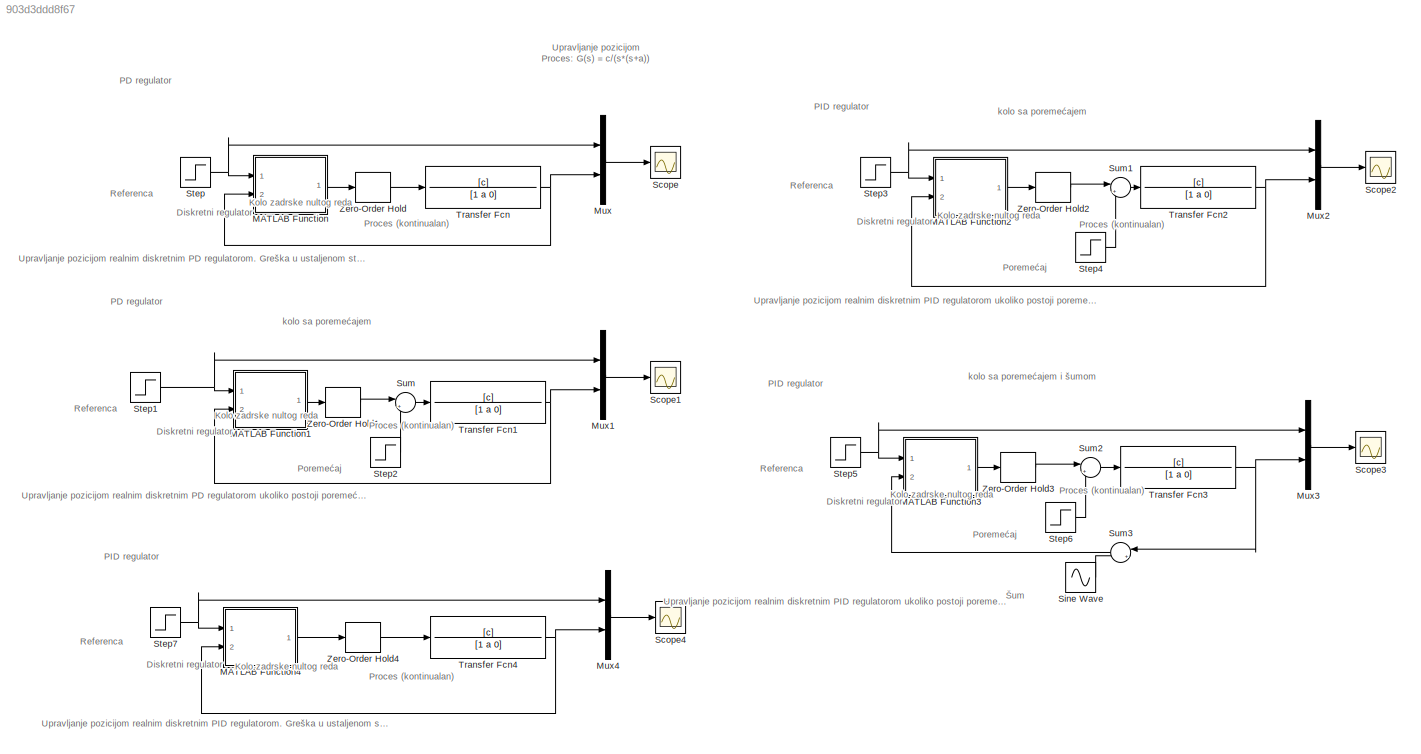
MODEL slx_903d3ddd8f67
KIND model
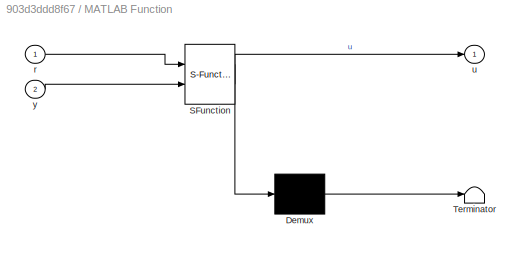
BLOCK [SubSystem] MATLAB Function
  ErrorFcn = Stateflow.Translate.translate
  FunctionWithSeparateData = off
  MaskDescription = Embedded MATLAB block
  MaskDisplay = bgColor = Simulink.Root.ColorString2Rgb(get_param(gcbh, 'BackgroundColor')); image(imread('private/eml_membrane_16.png','png','BackgroundColor',bgColor(1:3)),'center'); disp([10 10 'fcn']);  <repeated x5 — deduplicated; at blocks: MATLAB Function, MATLAB Function1, MATLAB Function2, MATLAB Function3, MATLAB Function4>
  MaskHideContents = off
  MaskIconFrame = on
  MaskIconOpaque = off
  MaskIconRotate = none
  MaskIconUnits = normalized
  MaskPortRotate = default
  MaskSelfModifiable = on
  MaskType = Stateflow
  MinAlgLoopOccurrences = off
  Opaque = off
  PermitHierarchicalResolution = ParametersOnly
  Ports = [2, 1]
  PropExecContextOutsideSubsystem = off
  RTWSystemCode = Auto
  RequestExecContextInheritance = off
  SFBlockType = MATLAB Function
  TreatAsAtomicUnit = on
  Variant = off
BLOCK [Demux] MATLAB Function/ Demux 
  Outputs = 1
  Ports = [1, 1]
BLOCK [S-Function] MATLAB Function/ SFunction 
  EnableBusSupport = on
  FunctionName = sf_sfun
  Parameters = K3,N,T,Td3
  PortCounts = [2 2]
  Ports = [2, 2]
  SFunctionDeploymentMode = off
  Tag = Stateflow S-Function upravljanjePozicijom2012a 2
BLOCK [Terminator] MATLAB Function/ Terminator 
BLOCK [Inport] MATLAB Function/r
  IconDisplay = Port number
BLOCK [Outport] MATLAB Function/u
  IconDisplay = Port number
BLOCK [Inport] MATLAB Function/y
  IconDisplay = Port number
  Port = 2
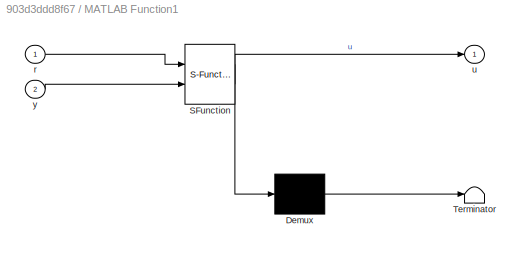
BLOCK [SubSystem] MATLAB Function1
  ErrorFcn = Stateflow.Translate.translate
  FunctionWithSeparateData = off
  MaskDescription = Embedded MATLAB block
  MaskHideContents = off
  MaskIconFrame = on
  MaskIconOpaque = off
  MaskIconRotate = none
  MaskIconUnits = normalized
  MaskPortRotate = default
  MaskSelfModifiable = on
  MaskType = Stateflow
  MinAlgLoopOccurrences = off
  Opaque = off
  PermitHierarchicalResolution = ParametersOnly
  Ports = [2, 1]
  PropExecContextOutsideSubsystem = off
  RTWSystemCode = Auto
  RequestExecContextInheritance = off
  SFBlockType = MATLAB Function
  TreatAsAtomicUnit = on
  Variant = off
BLOCK [Demux] MATLAB Function1/ Demux 
  Outputs = 1
  Ports = [1, 1]
BLOCK [S-Function] MATLAB Function1/ SFunction 
  EnableBusSupport = on
  FunctionName = sf_sfun
  Parameters = K3,N,T,Td3
  PortCounts = [2 2]
  Ports = [2, 2]
  SFunctionDeploymentMode = off
  Tag = Stateflow S-Function upravljanjePozicijom2012a 1
BLOCK [Terminator] MATLAB Function1/ Terminator 
BLOCK [Inport] MATLAB Function1/r
  IconDisplay = Port number
BLOCK [Outport] MATLAB Function1/u
  IconDisplay = Port number
BLOCK [Inport] MATLAB Function1/y
  IconDisplay = Port number
  Port = 2
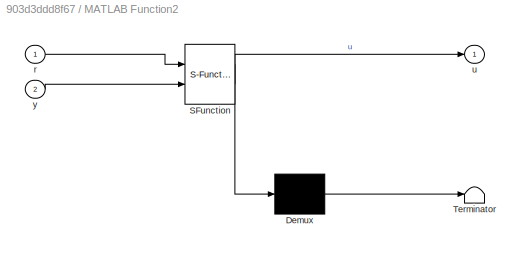
BLOCK [SubSystem] MATLAB Function2
  ErrorFcn = Stateflow.Translate.translate
  FunctionWithSeparateData = off
  MaskDescription = Embedded MATLAB block
  MaskHideContents = off
  MaskIconFrame = on
  MaskIconOpaque = off
  MaskIconRotate = none
  MaskIconUnits = normalized
  MaskPortRotate = default
  MaskSelfModifiable = on
  MaskType = Stateflow
  MinAlgLoopOccurrences = off
  Opaque = off
  PermitHierarchicalResolution = ParametersOnly
  Ports = [2, 1]
  PropExecContextOutsideSubsystem = off
  RTWSystemCode = Auto
  RequestExecContextInheritance = off
  SFBlockType = MATLAB Function
  TreatAsAtomicUnit = on
  Variant = off
BLOCK [Demux] MATLAB Function2/ Demux 
  Outputs = 1
  Ports = [1, 1]
BLOCK [S-Function] MATLAB Function2/ SFunction 
  EnableBusSupport = on
  FunctionName = sf_sfun
  Parameters = K4,N,T,Td4,Ti4,b
  PortCounts = [2 2]
  Ports = [2, 2]
  SFunctionDeploymentMode = off
  Tag = Stateflow S-Function upravljanjePozicijom2012a 3
BLOCK [Terminator] MATLAB Function2/ Terminator 
BLOCK [Inport] MATLAB Function2/r
  IconDisplay = Port number
BLOCK [Outport] MATLAB Function2/u
  IconDisplay = Port number
BLOCK [Inport] MATLAB Function2/y
  IconDisplay = Port number
  Port = 2
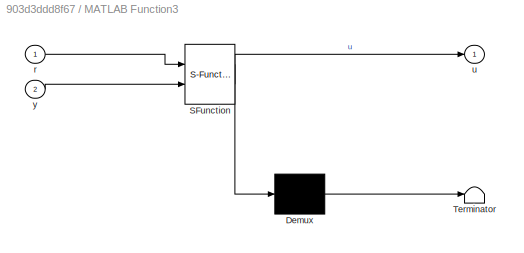
BLOCK [SubSystem] MATLAB Function3
  ErrorFcn = Stateflow.Translate.translate
  FunctionWithSeparateData = off
  MaskDescription = Embedded MATLAB block
  MaskHideContents = off
  MaskIconFrame = on
  MaskIconOpaque = off
  MaskIconRotate = none
  MaskIconUnits = normalized
  MaskPortRotate = default
  MaskSelfModifiable = on
  MaskType = Stateflow
  MinAlgLoopOccurrences = off
  Opaque = off
  PermitHierarchicalResolution = ParametersOnly
  Ports = [2, 1]
  PropExecContextOutsideSubsystem = off
  RTWSystemCode = Auto
  RequestExecContextInheritance = off
  SFBlockType = MATLAB Function
  TreatAsAtomicUnit = on
  Variant = off
BLOCK [Demux] MATLAB Function3/ Demux 
  Outputs = 1
  Ports = [1, 1]
BLOCK [S-Function] MATLAB Function3/ SFunction 
  EnableBusSupport = on
  FunctionName = sf_sfun
  Parameters = K4,N,T,Td4,Ti4,b
  PortCounts = [2 2]
  Ports = [2, 2]
  SFunctionDeploymentMode = off
  Tag = Stateflow S-Function upravljanjePozicijom2012a 4
BLOCK [Terminator] MATLAB Function3/ Terminator 
BLOCK [Inport] MATLAB Function3/r
  IconDisplay = Port number
BLOCK [Outport] MATLAB Function3/u
  IconDisplay = Port number
BLOCK [Inport] MATLAB Function3/y
  IconDisplay = Port number
  Port = 2
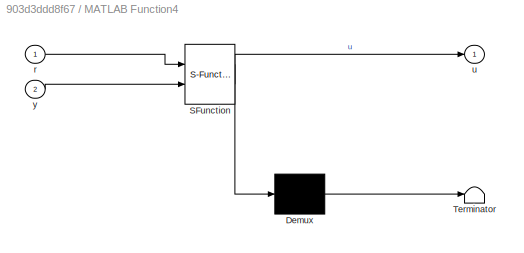
BLOCK [SubSystem] MATLAB Function4
  ErrorFcn = Stateflow.Translate.translate
  FunctionWithSeparateData = off
  MaskDescription = Embedded MATLAB block
  MaskHideContents = off
  MaskIconFrame = on
  MaskIconOpaque = off
  MaskIconRotate = none
  MaskIconUnits = normalized
  MaskPortRotate = default
  MaskSelfModifiable = on
  MaskType = Stateflow
  MinAlgLoopOccurrences = off
  Opaque = off
  PermitHierarchicalResolution = ParametersOnly
  Ports = [2, 1]
  PropExecContextOutsideSubsystem = off
  RTWSystemCode = Auto
  RequestExecContextInheritance = off
  SFBlockType = MATLAB Function
  TreatAsAtomicUnit = on
  Variant = off
BLOCK [Demux] MATLAB Function4/ Demux 
  Outputs = 1
  Ports = [1, 1]
BLOCK [S-Function] MATLAB Function4/ SFunction 
  EnableBusSupport = on
  FunctionName = sf_sfun
  Parameters = K4,N,T,Td4,Ti4,b
  PortCounts = [2 2]
  Ports = [2, 2]
  SFunctionDeploymentMode = off
  Tag = Stateflow S-Function upravljanjePozicijom2012a 5
BLOCK [Terminator] MATLAB Function4/ Terminator 
BLOCK [Inport] MATLAB Function4/r
  IconDisplay = Port number
BLOCK [Outport] MATLAB Function4/u
  IconDisplay = Port number
BLOCK [Inport] MATLAB Function4/y
  IconDisplay = Port number
  Port = 2
BLOCK [Mux] Mux
  DisplayOption = bar
  Inputs = 2
  Ports = [2, 1]
BLOCK [Mux] Mux1
  DisplayOption = bar
  Inputs = 2
  Ports = [2, 1]
BLOCK [Mux] Mux2
  DisplayOption = bar
  Inputs = 2
  Ports = [2, 1]
BLOCK [Mux] Mux3
  DisplayOption = bar
  Inputs = 2
  Ports = [2, 1]
BLOCK [Mux] Mux4
  DisplayOption = bar
  Inputs = 2
  Ports = [2, 1]
BLOCK [Scope] Scope
  DataFormat = StructureWithTime
  Decimation = 1
  Grid = on
  LimitDataPoints = off
  MaxDataPoints = 5000
  NumInputPorts = 1
  Ports = [1]
  SampleInput = off
  SampleTime = -1
  SaveName = ScopeData
  SaveToWorkspace = off
  ShowLegends = off
  TickLabels = OneTimeTick
  TimeRange = auto
  YMax = 2.000009
  YMin = 1.999941
  ZoomMode = on
BLOCK [Scope] Scope1
  DataFormat = StructureWithTime
  Decimation = 1
  Grid = on
  LimitDataPoints = off
  MaxDataPoints = 5000
  NumInputPorts = 1
  Ports = [1]
  SampleInput = off
  SampleTime = -1
  SaveName = ScopeData1
  SaveToWorkspace = off
  ShowLegends = off
  TickLabels = OneTimeTick
  TimeRange = auto
  YMax = 2.295
  YMin = -0.255
  ZoomMode = on
BLOCK [Scope] Scope2
  DataFormat = StructureWithTime
  Decimation = 1
  Grid = on
  LimitDataPoints = off
  MaxDataPoints = 5000
  NumInputPorts = 1
  Ports = [1]
  SampleInput = off
  SampleTime = -1
  SaveName = ScopeData2
  SaveToWorkspace = off
  ShowLegends = off
  TickLabels = OneTimeTick
  TimeRange = auto
  YMax = 2.28811
  YMin = -0.25423
  ZoomMode = on
BLOCK [Scope] Scope3
  DataFormat = StructureWithTime
  Decimation = 1
  Grid = on
  LimitDataPoints = off
  MaxDataPoints = 5000
  NumInputPorts = 1
  Ports = [1]
  SampleInput = off
  SampleTime = -1
  SaveName = ScopeData3
  SaveToWorkspace = off
  ShowLegends = off
  TickLabels = OneTimeTick
  TimeRange = auto
  YMax = 7.24007
  YMin = -1.84815
  ZoomMode = on
BLOCK [Scope] Scope4
  DataFormat = StructureWithTime
  Decimation = 1
  Grid = on
  LimitDataPoints = off
  MaxDataPoints = 5000
  NumInputPorts = 1
  Ports = [1]
  SampleInput = off
  SampleTime = -1
  SaveName = ScopeData1
  SaveToWorkspace = off
  ShowLegends = off
  TickLabels = OneTimeTick
  TimeRange = auto
  YMax = 2.01869
  YMin = 1.94244
  ZoomMode = on
BLOCK [Sin] Sine Wave
  Amplitude = 0.05
  Frequency = 50000
  Ports = [0, 1]
  SampleTime = 0
BLOCK [Step] Step
  After = 2
  SampleTime = T
BLOCK [Step] Step1
  After = 2
  SampleTime = T
BLOCK [Step] Step2
  After = 0.2
  SampleTime = 0
  Time = 25
BLOCK [Step] Step3
  After = 2
  SampleTime = T
BLOCK [Step] Step4
  After = 0.2
  SampleTime = 0
  Time = 50
BLOCK [Step] Step5
  After = 2
  SampleTime = T
BLOCK [Step] Step6
  After = 0.2
  SampleTime = 0
  Time = 50
BLOCK [Step] Step7
  After = 2
  SampleTime = T
BLOCK [Sum] Sum
  IconShape = round
  InputSameDT = off
  Inputs = |++
  OutDataTypeStr = Inherit: Inherit via internal rule
  Ports = [2, 1]
  SaturateOnIntegerOverflow = off
BLOCK [Sum] Sum1
  IconShape = round
  InputSameDT = off
  Inputs = |++
  OutDataTypeStr = Inherit: Inherit via internal rule
  Ports = [2, 1]
  SaturateOnIntegerOverflow = off
BLOCK [Sum] Sum2
  IconShape = round
  InputSameDT = off
  Inputs = |++
  OutDataTypeStr = Inherit: Inherit via internal rule
  Ports = [2, 1]
  SaturateOnIntegerOverflow = off
BLOCK [Sum] Sum3
  IconShape = round
  InputSameDT = off
  Inputs = |++
  OutDataTypeStr = Inherit: Inherit via internal rule
  Ports = [2, 1]
  SaturateOnIntegerOverflow = off
BLOCK [TransferFcn] Transfer Fcn
  Denominator = [1 a 0]
  Numerator = [c]
BLOCK [TransferFcn] Transfer Fcn1
  Denominator = [1 a 0]
  Numerator = [c]
BLOCK [TransferFcn] Transfer Fcn2
  Denominator = [1 a 0]
  Numerator = [c]
BLOCK [TransferFcn] Transfer Fcn3
  Denominator = [1 a 0]
  Numerator = [c]
BLOCK [TransferFcn] Transfer Fcn4
  Denominator = [1 a 0]
  Numerator = [c]
BLOCK [ZeroOrderHold] Zero-Order Hold
  SampleTime = T
BLOCK [ZeroOrderHold] Zero-Order Hold1
  SampleTime = T
BLOCK [ZeroOrderHold] Zero-Order Hold2
  SampleTime = T
BLOCK [ZeroOrderHold] Zero-Order Hold3
  SampleTime = T
BLOCK [ZeroOrderHold] Zero-Order Hold4
  SampleTime = T
ANNOTATION (root): Diskretni regulator
ANNOTATION (root): Kolo zadrske nultog reda
ANNOTATION (root): PD regulator
ANNOTATION (root): PID regulator
ANNOTATION (root): Poremećaj
ANNOTATION (root): Proces (kontinualan)
ANNOTATION (root): Referenca
ANNOTATION (root): Upravljanje pozicijom Proces: G(s) = c/(s*(s+a))
ANNOTATION (root): Upravljanje pozicijom realnim diskretnim PD regulatorom ukoliko postoji poremećaj u sistemu. Greška u ustaljenom stanju postoji zbog čega uvodimo I dejstvo.
ANNOTATION (root): Upravljanje pozicijom realnim diskretnim PD regulatorom. Greška u ustaljenom stanju je nula.
ANNOTATION (root): Upravljanje pozicijom realnim diskretnim PID regulatorom ukoliko postoji poremećaj i šum u sistemu.
ANNOTATION (root): Upravljanje pozicijom realnim diskretnim PID regulatorom ukoliko postoji poremećaj u sistemu. Greška u ustaljenom stanju je nula.
ANNOTATION (root): Upravljanje pozicijom realnim diskretnim PID regulatorom. Greška u ustaljenom stanju je nula.
ANNOTATION (root): kolo sa poremećajem
ANNOTATION (root): kolo sa poremećajem i šumom
ANNOTATION (root): Šum
LINE MATLAB Function1:1 -> Zero-Order Hold1:1
LINE MATLAB Function2:1 -> Zero-Order Hold2:1
LINE MATLAB Function3:1 -> Zero-Order Hold3:1
LINE MATLAB Function4:1 -> Zero-Order Hold4:1
LINE MATLAB Function:1 -> Zero-Order Hold:1
LINE Mux1:1 -> Scope1:1
LINE Mux2:1 -> Scope2:1
LINE Mux3:1 -> Scope3:1
LINE Mux4:1 -> Scope4:1
LINE Mux:1 -> Scope:1
LINE Sine Wave:1 -> Sum3:2
NET Step1:1 -> MATLAB Function1:1, Mux1:1
LINE Step2:1 -> Sum:2
NET Step3:1 -> MATLAB Function2:1, Mux2:1
LINE Step4:1 -> Sum1:2
NET Step5:1 -> MATLAB Function3:1, Mux3:1
LINE Step6:1 -> Sum2:2
NET Step7:1 -> MATLAB Function4:1, Mux4:1
NET Step:1 -> MATLAB Function:1, Mux:1
LINE Sum1:1 -> Transfer Fcn2:1
LINE Sum2:1 -> Transfer Fcn3:1
LINE Sum3:1 -> MATLAB Function3:2
LINE Sum:1 -> Transfer Fcn1:1
NET Transfer Fcn1:1 -> MATLAB Function1:2, Mux1:2
NET Transfer Fcn2:1 -> MATLAB Function2:2, Mux2:2
NET Transfer Fcn3:1 -> Mux3:2, Sum3:1
NET Transfer Fcn4:1 -> MATLAB Function4:2, Mux4:2
NET Transfer Fcn:1 -> MATLAB Function:2, Mux:2
LINE Zero-Order Hold1:1 -> Sum:1
LINE Zero-Order Hold2:1 -> Sum1:1
LINE Zero-Order Hold3:1 -> Sum2:1
LINE Zero-Order Hold4:1 -> Transfer Fcn4:1
LINE Zero-Order Hold:1 -> Transfer Fcn:1
note: NET lines group one-source signal fan-out (src -> all destinations, sorted); 1:1 wires keep LINE
